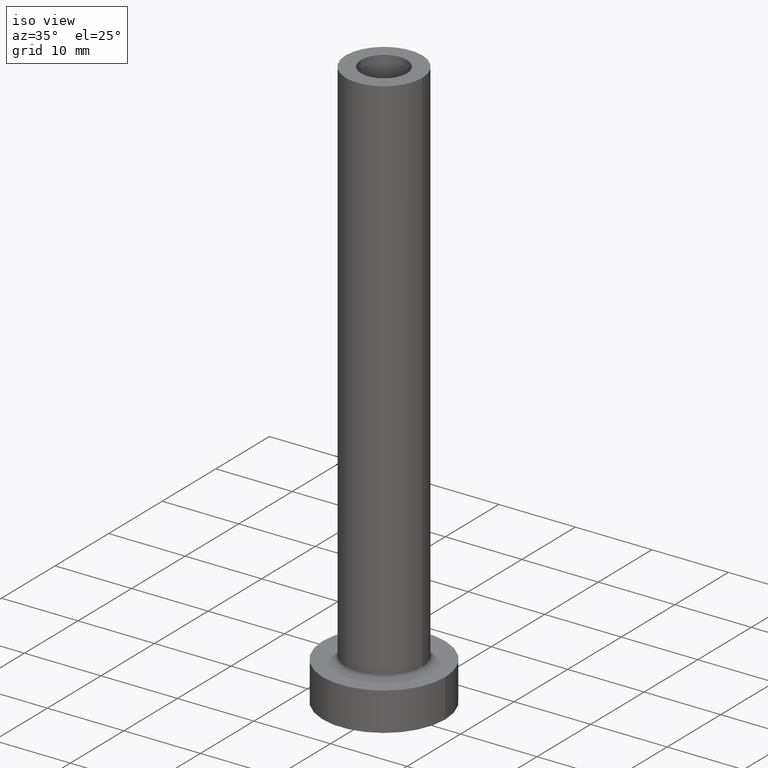
[diagram: clean part render]
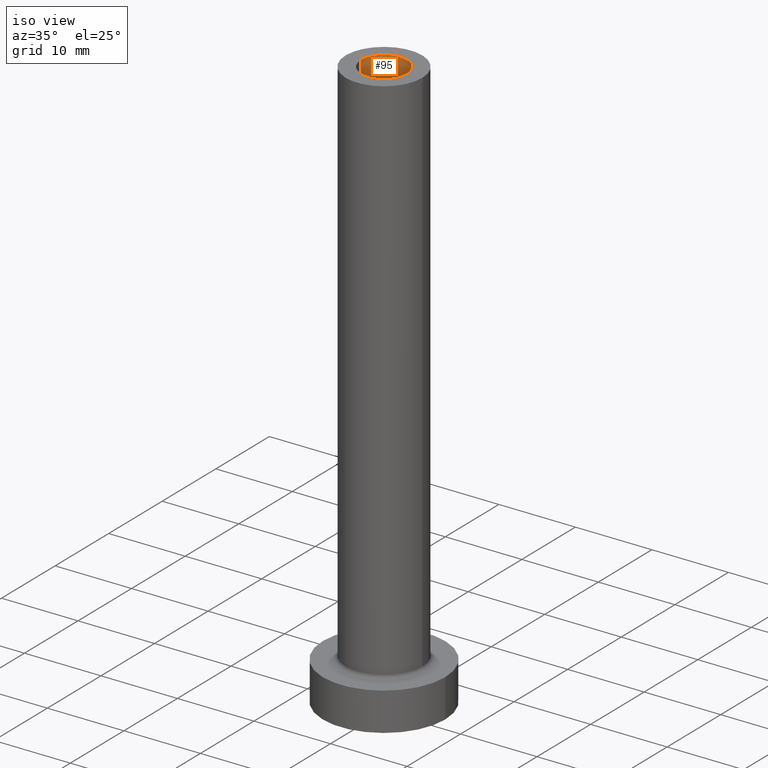
[diagram: same view with one face highlighted and labeled with its STEP entity id]
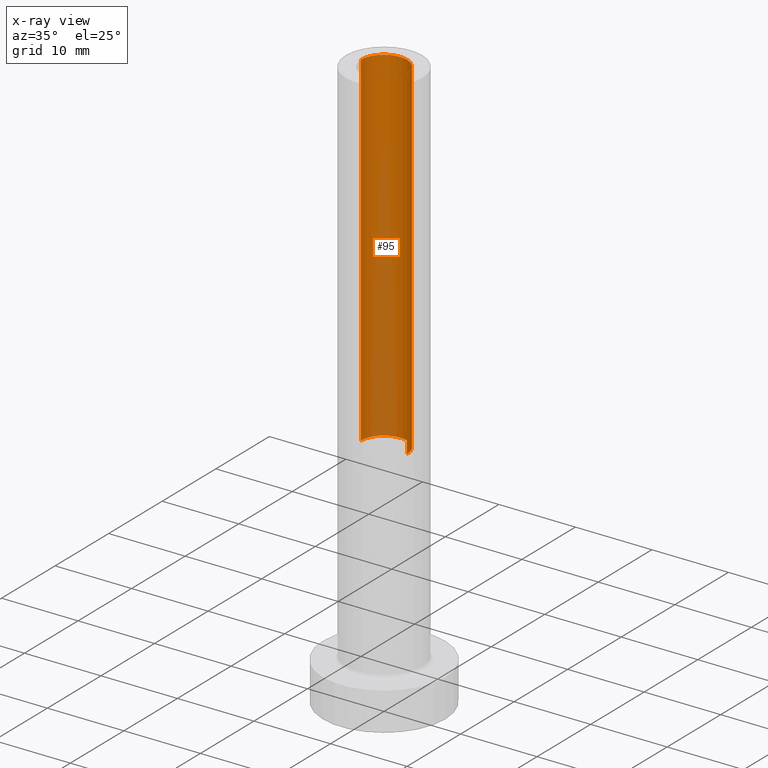
[diagram: x-ray of the same camera — body ghosted, the highlighted face saturated]
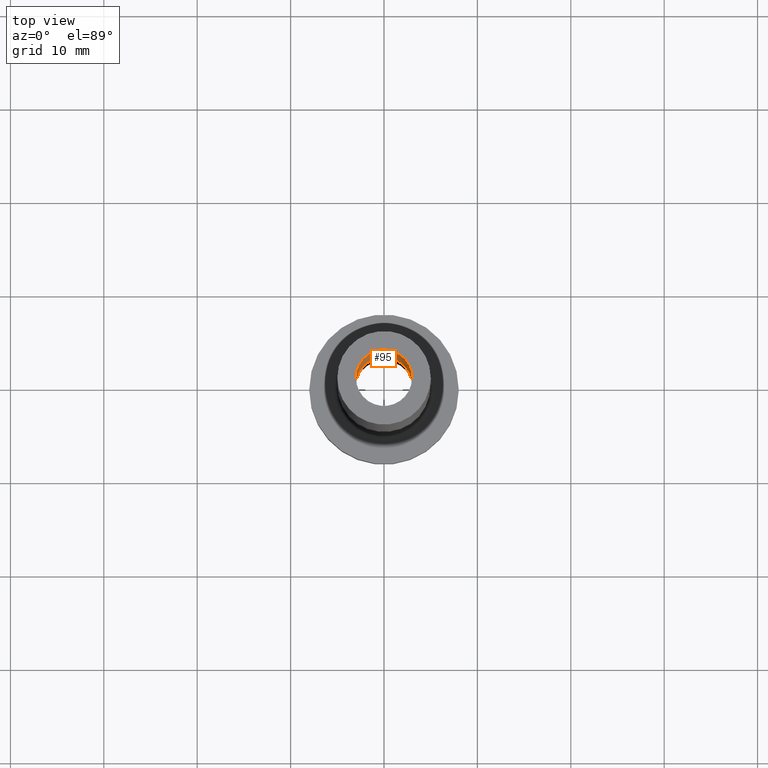
[diagram: same view with one face highlighted and labeled with its STEP entity id]
A machine part, iso view. The second image highlights one B-rep face of the part: STEP entity #95.
The next image is the same camera in x-ray: the body ghosted, the highlighted face saturated — about 25% of this face is hidden behind the body in this view.
A second angle (top view) of the same face is appended — the face is thin or edge-on in the first view.
In plain terms, the highlighted cylindrical surface (edge-blend (fillet) strip) has radius 3 mm, axis along (0, 0, -1).
Its self-contained STEP definition (entity closure, byte-faithful):
#16 = CARTESIAN_POINT ( 'NONE',  ( 3.000000000000000444, 3.673940397442059868E-16, 30.00000000000001421 ) ) ;
#22 = DIRECTION ( 'NONE',  ( 1.000000000000000000, 0.000000000000000000, 0.000000000000000000 ) ) ;
#48 = DIRECTION ( 'NONE',  ( 1.000000000000000000, 0.000000000000000000, 0.000000000000000000 ) ) ;
#54 = CYLINDRICAL_SURFACE ( 'NONE', #448, 3.000000000000000444 ) ;
#67 = ORIENTED_EDGE ( 'NONE', *, *, #177, .T. ) ;
#84 = CARTESIAN_POINT ( 'NONE',  ( -3.000000000000000444, 0.000000000000000000, 75.00000000000001421 ) ) ;
#87 = CARTESIAN_POINT ( 'NONE',  ( 0.000000000000000000, 0.000000000000000000, 30.00000000000001421 ) ) ;
#92 = DIRECTION ( 'NONE',  ( 0.000000000000000000, 0.000000000000000000, 1.000000000000000000 ) ) ;
#95 = ADVANCED_FACE ( 'NONE', ( #262 ), #54, .F. ) ;
#110 = AXIS2_PLACEMENT_3D ( 'NONE', #87, #371, #48 ) ;
#111 = EDGE_CURVE ( 'NONE', #253, #327, #228, .T. ) ;
#116 = DIRECTION ( 'NONE',  ( -1.000000000000000000, 0.000000000000000000, 0.000000000000000000 ) ) ;
#129 = EDGE_CURVE ( 'NONE', #253, #382, #247, .T. ) ;
#142 = ORIENTED_EDGE ( 'NONE', *, *, #129, .T. ) ;
#177 = EDGE_CURVE ( 'NONE', #382, #369, #184, .T. ) ;
#184 = LINE ( 'NONE', #388, #203 ) ;
#203 = VECTOR ( 'NONE', #248, 1000.000000000000000 ) ;
#217 = AXIS2_PLACEMENT_3D ( 'NONE', #406, #92, #22 ) ;
#228 = LINE ( 'NONE', #439, #350 ) ;
#246 = ORIENTED_EDGE ( 'NONE', *, *, #420, .F. ) ;
#247 = CIRCLE ( 'NONE', #217, 3.000000000000000444 ) ;
#248 = DIRECTION ( 'NONE',  ( 0.000000000000000000, 0.000000000000000000, -1.000000000000000000 ) ) ;
#253 = VERTEX_POINT ( 'NONE', #357 ) ;
#262 = FACE_OUTER_BOUND ( 'NONE', #378, .T. ) ;
#267 = DIRECTION ( 'NONE',  ( 0.000000000000000000, 0.000000000000000000, -1.000000000000000000 ) ) ;
#314 = CIRCLE ( 'NONE', #110, 3.000000000000000444 ) ;
#327 = VERTEX_POINT ( 'NONE', #16 ) ;
#331 = DIRECTION ( 'NONE',  ( 0.000000000000000000, 0.000000000000000000, -1.000000000000000000 ) ) ;
#350 = VECTOR ( 'NONE', #267, 1000.000000000000000 ) ;
#353 = ORIENTED_EDGE ( 'NONE', *, *, #111, .F. ) ;
#357 = CARTESIAN_POINT ( 'NONE',  ( 3.000000000000000444, 3.673940397442059868E-16, 75.00000000000001421 ) ) ;
#369 = VERTEX_POINT ( 'NONE', #405 ) ;
#371 = DIRECTION ( 'NONE',  ( 0.000000000000000000, 0.000000000000000000, 1.000000000000000000 ) ) ;
#378 = EDGE_LOOP ( 'NONE', ( #353, #142, #67, #246 ) ) ;
#382 = VERTEX_POINT ( 'NONE', #84 ) ;
#388 = CARTESIAN_POINT ( 'NONE',  ( -3.000000000000000444, 0.000000000000000000, 75.00000000000001421 ) ) ;
#405 = CARTESIAN_POINT ( 'NONE',  ( -3.000000000000000444, 0.000000000000000000, 30.00000000000001421 ) ) ;
#406 = CARTESIAN_POINT ( 'NONE',  ( 0.000000000000000000, 0.000000000000000000, 75.00000000000001421 ) ) ;
#420 = EDGE_CURVE ( 'NONE', #327, #369, #314, .T. ) ;
#439 = CARTESIAN_POINT ( 'NONE',  ( 3.000000000000000444, 3.673940397442059868E-16, 75.00000000000001421 ) ) ;
#443 = CARTESIAN_POINT ( 'NONE',  ( 0.000000000000000000, 0.000000000000000000, 75.00000000000001421 ) ) ;
#448 = AXIS2_PLACEMENT_3D ( 'NONE', #443, #331, #116 ) ;